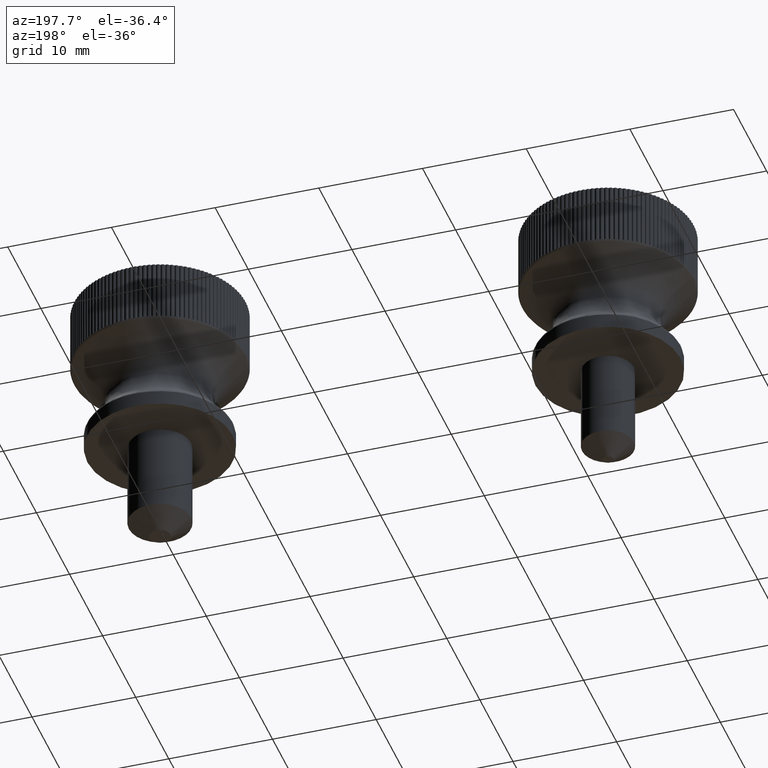
[diagram: clean part render]
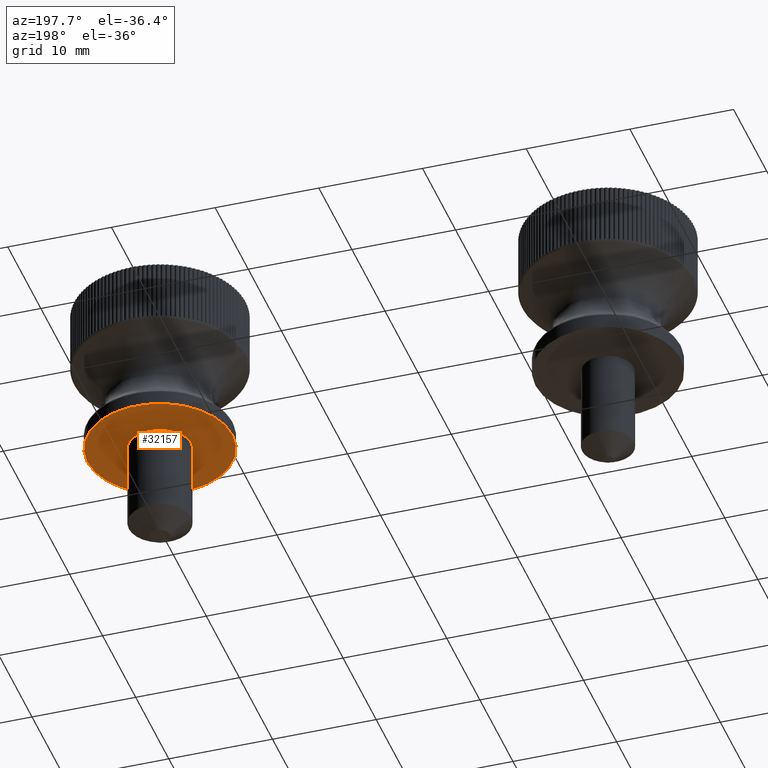
[diagram: same view with one face highlighted and labeled with its STEP entity id]
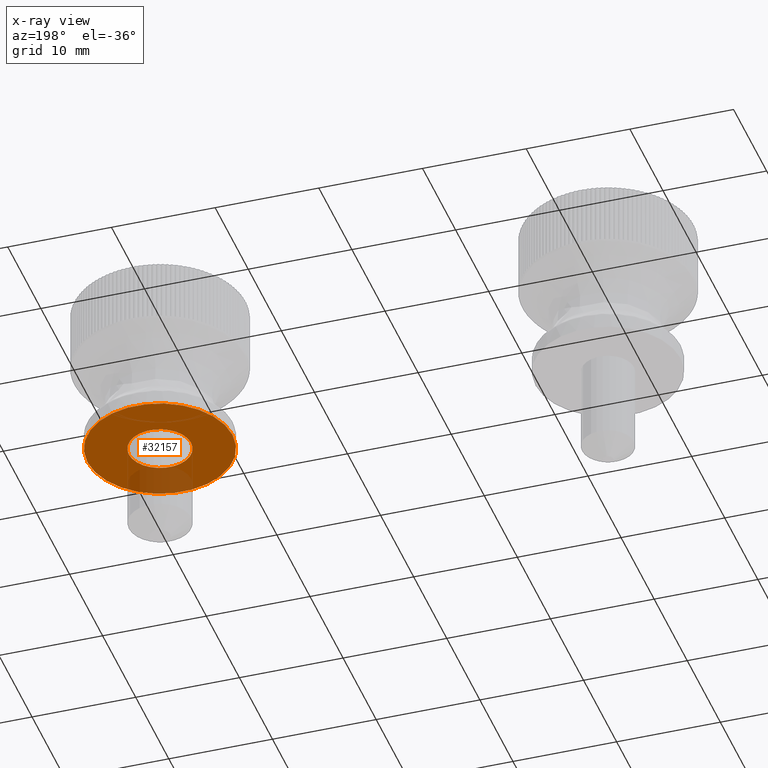
[diagram: x-ray of the same camera — body ghosted, the highlighted face saturated]
A machine part, auxiliary view. The second image highlights one B-rep face of the part: STEP entity #32157.
The next image is the same camera in x-ray: the body ghosted, the highlighted face saturated — about 16% of this face is hidden behind the body in this view.
In plain terms, the highlighted planar face has unit normal (0, 0, 1).
Its self-contained STEP definition (entity closure, byte-faithful):
#5092=PLANE('',#35664);
#6064=FACE_BOUND('',#9707,.T.);
#7521=FACE_OUTER_BOUND('',#9706,.T.);
#9706=EDGE_LOOP('',(#27693));
#9707=EDGE_LOOP('',(#27694));
#11517=CIRCLE('',#34818,3.);
#11519=CIRCLE('',#34822,7.);
#14053=VERTEX_POINT('',#60815);
#14057=VERTEX_POINT('',#60974);
#18036=EDGE_CURVE('',#14053,#14053,#11517,.T.);
#18042=EDGE_CURVE('',#14057,#14057,#11519,.T.);
#27693=ORIENTED_EDGE('',*,*,#18042,.T.);
#27694=ORIENTED_EDGE('',*,*,#18036,.T.);
#32157=ADVANCED_FACE('',(#7521,#6064),#5092,.F.);
#34818=AXIS2_PLACEMENT_3D('',#60816,#41102,#41103);
#34822=AXIS2_PLACEMENT_3D('',#60975,#41110,#41111);
#35664=AXIS2_PLACEMENT_3D('',#65784,#43154,#43155);
#41102=DIRECTION('center_axis',(0.,0.,1.));
#41103=DIRECTION('ref_axis',(1.,0.,0.));
#41110=DIRECTION('center_axis',(0.,0.,-1.));
#41111=DIRECTION('ref_axis',(-1.,0.,0.));
#43154=DIRECTION('center_axis',(0.,0.,1.));
#43155=DIRECTION('ref_axis',(1.,0.,0.));
#60815=CARTESIAN_POINT('',(-3.,3.67394039744206E-16,0.));
#60816=CARTESIAN_POINT('Origin',(0.,0.,0.));
#60974=CARTESIAN_POINT('',(7.,8.57252759403147E-16,0.));
#60975=CARTESIAN_POINT('Origin',(0.,0.,0.));
#65784=CARTESIAN_POINT('Origin',(-3.35776545337204E-16,1.32169407693471E-16,
0.));